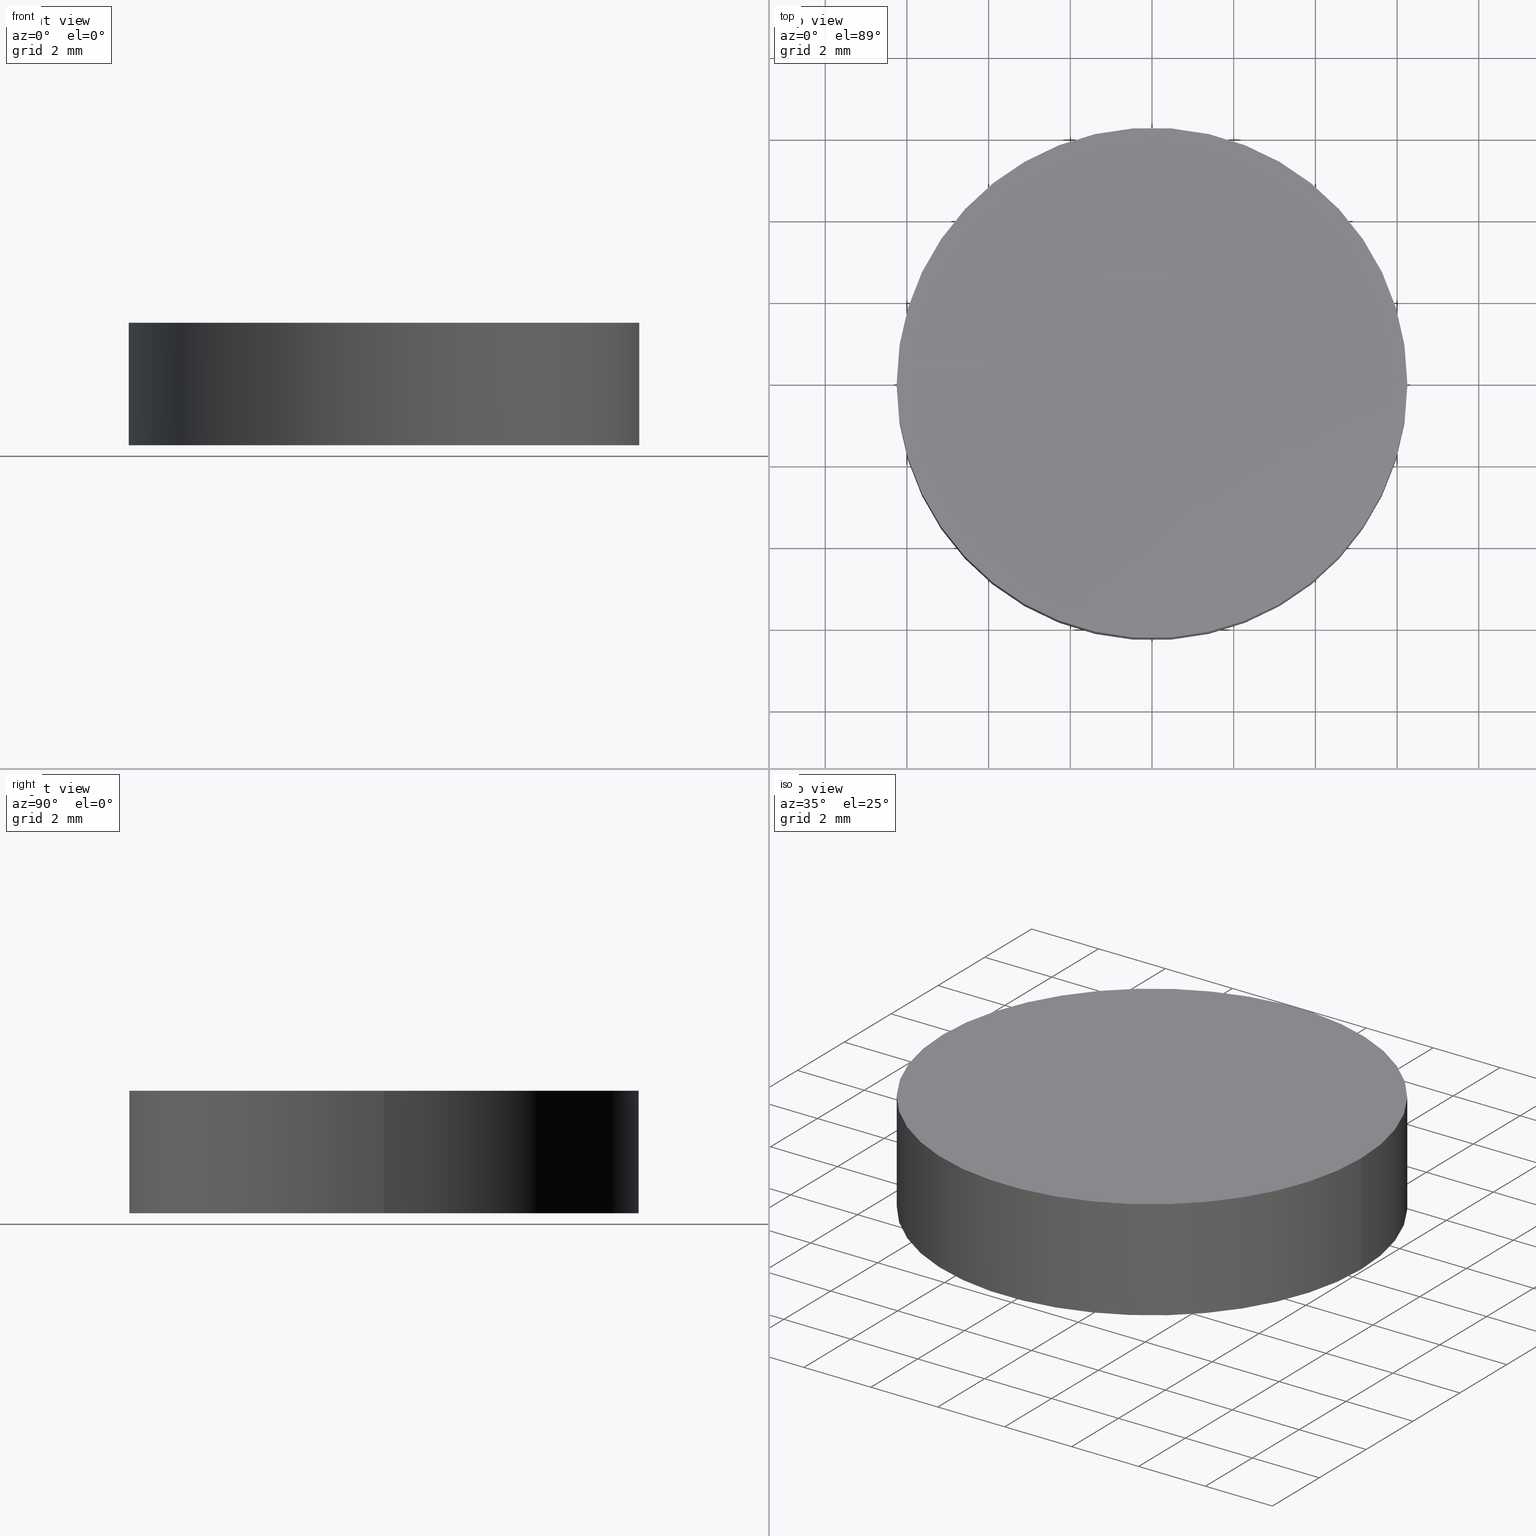
[diagram: canonical four-view strip — front | top / right | iso, engineering-drawing reading convention]
A machine part, canonical four-view strip (front | top / right | iso — engineering-drawing reading convention). The complete STEP part file that produces these views, byte-faithful:
ISO-10303-21;
HEADER;
FILE_DESCRIPTION (( 'STEP AP203' ),
    '1' );
FILE_NAME ('340500.STEP',
    '2019-07-30T06:41:51',
    ( '' ),
    ( '' ),
    'SwSTEP 2.0',
    'SolidWorks 2016',
    '' );
FILE_SCHEMA (( 'CONFIG_CONTROL_DESIGN' ));
ENDSEC;

DATA;
#1 = LOCAL_TIME ( 14, 41, 51.00000000000000000, #190 ) ;
#2 = CC_DESIGN_SECURITY_CLASSIFICATION ( #232, ( #123 ) ) ;
#3 = EDGE_CURVE ( 'NONE', #142, #80, #97, .T. ) ;
#4 = APPROVAL_PERSON_ORGANIZATION ( #38, #40, #88 ) ;
#5 = LOCAL_TIME ( 14, 41, 51.00000000000000000, #79 ) ;
#6 = PERSON_AND_ORGANIZATION ( #132, #160 ) ;
#7 = CALENDAR_DATE ( 2019, 30, 7 ) ;
#8 = DIRECTION ( 'NONE',  ( 1.000000000000000000, 0.0000000000000000000, 0.0000000000000000000 ) ) ;
#9 = AXIS2_PLACEMENT_3D ( 'NONE', #186, #203, #224 ) ;
#10 = ADVANCED_BREP_SHAPE_REPRESENTATION ( '340500', ( #91, #21 ), #251 ) ;
#11 = CARTESIAN_POINT ( 'NONE',  ( 6.249999999999998200, 7.654042494670955600E-016, 3.000000000000000000 ) ) ;
#12 = CARTESIAN_POINT ( 'NONE',  ( 0.0000000000000000000, 0.0000000000000000000, 0.0000000000000000000 ) ) ;
#13 = LOCAL_TIME ( 14, 41, 51.00000000000000000, #86 ) ;
#14 = CIRCLE ( 'NONE', #198, 6.249999999999998200 ) ;
#15 = PRODUCT_RELATED_PRODUCT_CATEGORY ( 'detail', '', ( #206 ) ) ;
#16 = APPROVAL_ROLE ( '' ) ;
#17 = APPROVAL_STATUS ( 'not_yet_approved' ) ;
#18 = VERTEX_POINT ( 'NONE', #68 ) ;
#19 = DIRECTION ( 'NONE',  ( 1.000000000000000000, 0.0000000000000000000, 0.0000000000000000000 ) ) ;
#20 = APPLICATION_CONTEXT ( 'configuration controlled 3d designs of mechanical parts and assemblies' ) ;
#21 = AXIS2_PLACEMENT_3D ( 'NONE', #12, #104, #19 ) ;
#22 = APPROVAL_PERSON_ORGANIZATION ( #65, #89, #172 ) ;
#23 = PERSON_AND_ORGANIZATION ( #132, #160 ) ;
#24 = COORDINATED_UNIVERSAL_TIME_OFFSET ( 8, 0, .AHEAD. ) ;
#25 = ORIENTED_EDGE ( 'NONE', *, *, #83, .F. ) ;
#26 = AXIS2_PLACEMENT_3D ( 'NONE', #166, #144, #82 ) ;
#27 = DIRECTION ( 'NONE',  ( 0.0000000000000000000, 0.0000000000000000000, 1.000000000000000000 ) ) ;
#28 = CARTESIAN_POINT ( 'NONE',  ( 0.0000000000000000000, 0.0000000000000000000, 0.0000000000000000000 ) ) ;
#29 = CALENDAR_DATE ( 2019, 30, 7 ) ;
#30 = FACE_OUTER_BOUND ( 'NONE', #215, .T. ) ;
#31 = APPROVAL_ROLE ( '' ) ;
#32 = CLOSED_SHELL ( 'NONE', ( #177, #51, #145, #34 ) ) ;
#33 = PERSON_AND_ORGANIZATION_ROLE ( 'design_supplier' ) ;
#34 = ADVANCED_FACE ( 'NONE', ( #139 ), #244, .F. ) ;
#35 = SECURITY_CLASSIFICATION_LEVEL ( 'unclassified' ) ;
#36 = PERSON_AND_ORGANIZATION ( #132, #160 ) ;
#37 = ORIENTED_EDGE ( 'NONE', *, *, #3, .F. ) ;
#38 = PERSON_AND_ORGANIZATION ( #132, #160 ) ;
#39 = PERSON_AND_ORGANIZATION ( #132, #160 ) ;
#40 = APPROVAL ( #249, 'δָ��' ) ;
#41 = PERSON_AND_ORGANIZATION ( #132, #160 ) ;
#42 = DIRECTION ( 'NONE',  ( -1.000000000000000000, 0.0000000000000000000, 0.0000000000000000000 ) ) ;
#43 = APPROVAL_DATE_TIME ( #210, #111 ) ;
#44 = CC_DESIGN_PERSON_AND_ORGANIZATION_ASSIGNMENT ( #23, #188, ( #206 ) ) ;
#45 = DIRECTION ( 'NONE',  ( 0.0000000000000000000, 0.0000000000000000000, 1.000000000000000000 ) ) ;
#46 = APPROVAL_DATE_TIME ( #199, #158 ) ;
#47 = ORIENTED_EDGE ( 'NONE', *, *, #59, .T. ) ;
#48 = DATE_TIME_ROLE ( 'classification_date' ) ;
#49 = APPROVAL_STATUS ( 'not_yet_approved' ) ;
#50 = EDGE_CURVE ( 'NONE', #80, #197, #61, .T. ) ;
#51 = ADVANCED_FACE ( 'NONE', ( #121 ), #234, .T. ) ;
#52 = LOCAL_TIME ( 14, 41, 51.00000000000000000, #84 ) ;
#53 = DATE_TIME_ROLE ( 'creation_date' ) ;
#54 = PERSON_AND_ORGANIZATION_ROLE ( 'creator' ) ;
#55 = CC_DESIGN_PERSON_AND_ORGANIZATION_ASSIGNMENT ( #184, #228, ( #135 ) ) ;
#56 = DATE_AND_TIME ( #96, #1 ) ;
#57 = CIRCLE ( 'NONE', #67, 6.249999999999998200 ) ;
#58 = PERSON_AND_ORGANIZATION ( #132, #160 ) ;
#59 = EDGE_CURVE ( 'NONE', #18, #197, #77, .T. ) ;
#60 = CALENDAR_DATE ( 2019, 30, 7 ) ;
#61 = CIRCLE ( 'NONE', #241, 6.249999999999998200 ) ;
#62 = DESIGN_CONTEXT ( 'detailed design', #153, 'design' ) ;
#63 = CC_DESIGN_APPROVAL ( #75, ( #202 ) ) ;
#64 = DIRECTION ( 'NONE',  ( 0.0000000000000000000, 0.0000000000000000000, 1.000000000000000000 ) ) ;
#65 = PERSON_AND_ORGANIZATION ( #132, #160 ) ;
#66 = SHAPE_DEFINITION_REPRESENTATION ( #222, #10 ) ;
#67 = AXIS2_PLACEMENT_3D ( 'NONE', #122, #64, #8 ) ;
#68 = CARTESIAN_POINT ( 'NONE',  ( 6.249999999999998200, 7.654042494670955600E-016, 3.000000000000000000 ) ) ;
#69 = PRODUCT_DEFINITION ( 'δ֪', '', #123, #62 ) ;
#70 = CARTESIAN_POINT ( 'NONE',  ( -6.249999999999998200, 0.0000000000000000000, 3.000000000000000000 ) ) ;
#71 =( NAMED_UNIT ( * ) PLANE_ANGLE_UNIT ( ) SI_UNIT ( $, .RADIAN. ) );
#72 = SECURITY_CLASSIFICATION_LEVEL ( 'unclassified' ) ;
#73 = CC_DESIGN_PERSON_AND_ORGANIZATION_ASSIGNMENT ( #223, #54, ( #69 ) ) ;
#74 = PERSON_AND_ORGANIZATION_ROLE ( 'creator' ) ;
#75 = APPROVAL ( #17, 'δָ��' ) ;
#76 = DATE_AND_TIME ( #126, #180 ) ;
#77 = LINE ( 'NONE', #11, #191 ) ;
#78 = PRODUCT_RELATED_PRODUCT_CATEGORY ( 'detail', '', ( #227 ) ) ;
#79 = COORDINATED_UNIVERSAL_TIME_OFFSET ( 8, 0, .AHEAD. ) ;
#80 = VERTEX_POINT ( 'NONE', #170 ) ;
#81 = CC_DESIGN_PERSON_AND_ORGANIZATION_ASSIGNMENT ( #6, #129, ( #227 ) ) ;
#82 = DIRECTION ( 'NONE',  ( 1.000000000000000000, 0.0000000000000000000, -0.0000000000000000000 ) ) ;
#83 = EDGE_CURVE ( 'NONE', #197, #80, #248, .T. ) ;
#84 = COORDINATED_UNIVERSAL_TIME_OFFSET ( 8, 0, .AHEAD. ) ;
#85 = CARTESIAN_POINT ( 'NONE',  ( -6.249999999999998200, 0.0000000000000000000, 3.000000000000000000 ) ) ;
#86 = COORDINATED_UNIVERSAL_TIME_OFFSET ( 8, 0, .AHEAD. ) ;
#87 = FACE_OUTER_BOUND ( 'NONE', #181, .T. ) ;
#88 = APPROVAL_ROLE ( '' ) ;
#89 = APPROVAL ( #192, 'δָ��' ) ;
#90 = DATE_TIME_ROLE ( 'classification_date' ) ;
#91 = MANIFOLD_SOLID_BREP ( '͹̨-����1', #32 ) ;
#92 = APPROVAL_DATE_TIME ( #159, #89 ) ;
#93 = APPLICATION_PROTOCOL_DEFINITION ( 'international standard', 'config_control_design', 1994, #152 ) ;
#94 = CALENDAR_DATE ( 2019, 30, 7 ) ;
#95 = CC_DESIGN_DATE_AND_TIME_ASSIGNMENT ( #103, #48, ( #135 ) ) ;
#96 = CALENDAR_DATE ( 2019, 30, 7 ) ;
#97 = LINE ( 'NONE', #85, #194 ) ;
#98 = DATE_AND_TIME ( #195, #218 ) ;
#99 = CC_DESIGN_PERSON_AND_ORGANIZATION_ASSIGNMENT ( #39, #208, ( #202 ) ) ;
#100 = DATE_AND_TIME ( #141, #237 ) ;
#101 = PERSON_AND_ORGANIZATION ( #132, #160 ) ;
#102 = EDGE_CURVE ( 'NONE', #142, #18, #57, .T. ) ;
#103 = DATE_AND_TIME ( #138, #214 ) ;
#104 = DIRECTION ( 'NONE',  ( 0.0000000000000000000, 0.0000000000000000000, 1.000000000000000000 ) ) ;
#105 = APPROVAL_PERSON_ORGANIZATION ( #110, #111, #16 ) ;
#106 = CARTESIAN_POINT ( 'NONE',  ( 0.0000000000000000000, 0.0000000000000000000, 0.0000000000000000000 ) ) ;
#107 = CYLINDRICAL_SURFACE ( 'NONE', #9, 6.249999999999998200 ) ;
#108 = DIRECTION ( 'NONE',  ( 0.0000000000000000000, 0.0000000000000000000, 1.000000000000000000 ) ) ;
#109 = APPROVAL_STATUS ( 'not_yet_approved' ) ;
#110 = PERSON_AND_ORGANIZATION ( #132, #160 ) ;
#111 = APPROVAL ( #157, 'δָ��' ) ;
#112 = PRODUCT_DEFINITION_FORMATION_WITH_SPECIFIED_SOURCE ( '�κ�', '', #206, .NOT_KNOWN. ) ;
#113 = LOCAL_TIME ( 14, 41, 51.00000000000000000, #167 ) ;
#114 = EDGE_LOOP ( 'NONE', ( #240, #169, #243, #134 ) ) ;
#115 = PRODUCT_DEFINITION_SHAPE ( 'NONE', 'NONE',  #202 ) ;
#116 = CC_DESIGN_PERSON_AND_ORGANIZATION_ASSIGNMENT ( #233, #74, ( #123 ) ) ;
#117 = ORIENTED_EDGE ( 'NONE', *, *, #211, .F. ) ;
#118 = CC_DESIGN_DATE_AND_TIME_ASSIGNMENT ( #100, #155, ( #202 ) ) ;
#119 = APPROVAL_DATE_TIME ( #149, #173 ) ;
#120 = CC_DESIGN_APPROVAL ( #111, ( #69 ) ) ;
#121 = FACE_OUTER_BOUND ( 'NONE', #114, .T. ) ;
#122 = CARTESIAN_POINT ( 'NONE',  ( 0.0000000000000000000, 0.0000000000000000000, 3.000000000000000000 ) ) ;
#123 = PRODUCT_DEFINITION_FORMATION_WITH_SPECIFIED_SOURCE ( '�κ�', '', #227, .NOT_KNOWN. ) ;
#124 = CC_DESIGN_PERSON_AND_ORGANIZATION_ASSIGNMENT ( #161, #207, ( #112 ) ) ;
#125 = DIRECTION ( 'NONE',  ( 1.000000000000000000, 0.0000000000000000000, 0.0000000000000000000 ) ) ;
#126 = CALENDAR_DATE ( 2019, 30, 7 ) ;
#127 = DIRECTION ( 'NONE',  ( -0.0000000000000000000, -0.0000000000000000000, -1.000000000000000000 ) ) ;
#128 = DIRECTION ( 'NONE',  ( 1.000000000000000000, 0.0000000000000000000, 0.0000000000000000000 ) ) ;
#129 = PERSON_AND_ORGANIZATION_ROLE ( 'design_owner' ) ;
#130 = MECHANICAL_CONTEXT ( 'NONE', #189, 'mechanical' ) ;
#131 = AXIS2_PLACEMENT_3D ( 'NONE', #168, #182, #42 ) ;
#132 = PERSON ( 'δָ��', 'δָ��', 'δָ��', ('δָ��'), ('δָ��'), ('δָ��') ) ;
#133 = APPROVAL_PERSON_ORGANIZATION ( #36, #173, #154 ) ;
#134 = ORIENTED_EDGE ( 'NONE', *, *, #50, .T. ) ;
#135 = SECURITY_CLASSIFICATION ( '', '', #72 ) ;
#136 = CC_DESIGN_DATE_AND_TIME_ASSIGNMENT ( #56, #53, ( #69 ) ) ;
#137 = CC_DESIGN_APPROVAL ( #89, ( #232 ) ) ;
#138 = CALENDAR_DATE ( 2019, 30, 7 ) ;
#139 = FACE_OUTER_BOUND ( 'NONE', #238, .T. ) ;
#140 = CC_DESIGN_PERSON_AND_ORGANIZATION_ASSIGNMENT ( #58, #171, ( #112 ) ) ;
#141 = CALENDAR_DATE ( 2019, 30, 7 ) ;
#142 = VERTEX_POINT ( 'NONE', #70 ) ;
#143 = CC_DESIGN_APPROVAL ( #40, ( #112 ) ) ;
#144 = DIRECTION ( 'NONE',  ( 0.0000000000000000000, 0.0000000000000000000, 1.000000000000000000 ) ) ;
#145 = ADVANCED_FACE ( 'NONE', ( #87 ), #204, .T. ) ;
#146 = COORDINATED_UNIVERSAL_TIME_OFFSET ( 8, 0, .AHEAD. ) ;
#147 = CARTESIAN_POINT ( 'NONE',  ( 0.0000000000000000000, 0.0000000000000000000, 0.0000000000000000000 ) ) ;
#148 = DIRECTION ( 'NONE',  ( 0.0000000000000000000, 0.0000000000000000000, 1.000000000000000000 ) ) ;
#149 = DATE_AND_TIME ( #29, #5 ) ;
#150 = ORIENTED_EDGE ( 'NONE', *, *, #102, .T. ) ;
#151 = CC_DESIGN_PERSON_AND_ORGANIZATION_ASSIGNMENT ( #221, #33, ( #123 ) ) ;
#152 = APPLICATION_CONTEXT ( 'configuration controlled 3d designs of mechanical parts and assemblies' ) ;
#153 = APPLICATION_CONTEXT ( 'configuration controlled 3d designs of mechanical parts and assemblies' ) ;
#154 = APPROVAL_ROLE ( '' ) ;
#155 = DATE_TIME_ROLE ( 'creation_date' ) ;
#156 = APPROVAL_DATE_TIME ( #242, #75 ) ;
#157 = APPROVAL_STATUS ( 'not_yet_approved' ) ;
#158 = APPROVAL ( #109, 'δָ��' ) ;
#159 = DATE_AND_TIME ( #60, #113 ) ;
#160 = ORGANIZATION ( 'δָ��', 'δָ��', '' ) ;
#161 = PERSON_AND_ORGANIZATION ( #132, #160 ) ;
#162 = APPROVAL_PERSON_ORGANIZATION ( #163, #158, #176 ) ;
#163 = PERSON_AND_ORGANIZATION ( #132, #160 ) ;
#164 = DIRECTION ( 'NONE',  ( 1.000000000000000000, 0.0000000000000000000, -0.0000000000000000000 ) ) ;
#165 = CC_DESIGN_SECURITY_CLASSIFICATION ( #135, ( #112 ) ) ;
#166 = CARTESIAN_POINT ( 'NONE',  ( 0.0000000000000000000, 0.0000000000000000000, 3.000000000000000000 ) ) ;
#167 = COORDINATED_UNIVERSAL_TIME_OFFSET ( 8, 0, .AHEAD. ) ;
#168 = CARTESIAN_POINT ( 'NONE',  ( 0.0000000000000000000, 0.0000000000000000000, 3.000000000000000000 ) ) ;
#169 = ORIENTED_EDGE ( 'NONE', *, *, #102, .F. ) ;
#170 = CARTESIAN_POINT ( 'NONE',  ( -6.249999999999998200, 0.0000000000000000000, 0.0000000000000000000 ) ) ;
#171 = PERSON_AND_ORGANIZATION_ROLE ( 'design_supplier' ) ;
#172 = APPROVAL_ROLE ( '' ) ;
#173 = APPROVAL ( #49, 'δָ��' ) ;
#174 = PERSON_AND_ORGANIZATION_ROLE ( 'classification_officer' ) ;
#175 = DIRECTION ( 'NONE',  ( 0.0000000000000000000, 0.0000000000000000000, 1.000000000000000000 ) ) ;
#176 = APPROVAL_ROLE ( '' ) ;
#177 = ADVANCED_FACE ( 'NONE', ( #30 ), #107, .T. ) ;
#178 = COORDINATED_UNIVERSAL_TIME_OFFSET ( 8, 0, .AHEAD. ) ;
#179 = ORIENTED_EDGE ( 'NONE', *, *, #50, .F. ) ;
#180 = LOCAL_TIME ( 14, 41, 51.00000000000000000, #246 ) ;
#181 = EDGE_LOOP ( 'NONE', ( #150, #225 ) ) ;
#182 = DIRECTION ( 'NONE',  ( -0.0000000000000000000, -0.0000000000000000000, -1.000000000000000000 ) ) ;
#183 = DIRECTION ( 'NONE',  ( -0.0000000000000000000, -0.0000000000000000000, -1.000000000000000000 ) ) ;
#184 = PERSON_AND_ORGANIZATION ( #132, #160 ) ;
#185 = ORIENTED_EDGE ( 'NONE', *, *, #83, .T. ) ;
#186 = CARTESIAN_POINT ( 'NONE',  ( 0.0000000000000000000, 0.0000000000000000000, 3.000000000000000000 ) ) ;
#187 = DIRECTION ( 'NONE',  ( 1.000000000000000000, 0.0000000000000000000, 0.0000000000000000000 ) ) ;
#188 = PERSON_AND_ORGANIZATION_ROLE ( 'design_owner' ) ;
#189 = APPLICATION_CONTEXT ( 'configuration controlled 3d designs of mechanical parts and assemblies' ) ;
#190 = COORDINATED_UNIVERSAL_TIME_OFFSET ( 8, 0, .AHEAD. ) ;
#191 = VECTOR ( 'NONE', #183, 1000.000000000000000 ) ;
#192 = APPROVAL_STATUS ( 'not_yet_approved' ) ;
#193 = CALENDAR_DATE ( 2019, 30, 7 ) ;
#194 = VECTOR ( 'NONE', #127, 1000.000000000000000 ) ;
#195 = CALENDAR_DATE ( 2019, 30, 7 ) ;
#196 = APPROVAL_DATE_TIME ( #98, #40 ) ;
#197 = VERTEX_POINT ( 'NONE', #226 ) ;
#198 = AXIS2_PLACEMENT_3D ( 'NONE', #231, #108, #128 ) ;
#199 = DATE_AND_TIME ( #94, #239 ) ;
#200 = CC_DESIGN_APPROVAL ( #158, ( #135 ) ) ;
#201 = CARTESIAN_POINT ( 'NONE',  ( 0.0000000000000000000, 0.0000000000000000000, 0.0000000000000000000 ) ) ;
#202 = PRODUCT_DEFINITION ( 'δ֪', '', #112, #229 ) ;
#203 = DIRECTION ( 'NONE',  ( -0.0000000000000000000, -0.0000000000000000000, -1.000000000000000000 ) ) ;
#204 = PLANE ( 'NONE',  #26 ) ;
#205 = APPROVAL_PERSON_ORGANIZATION ( #101, #75, #31 ) ;
#206 = PRODUCT ( '340500', '340500', '', ( #130 ) ) ;
#207 = PERSON_AND_ORGANIZATION_ROLE ( 'creator' ) ;
#208 = PERSON_AND_ORGANIZATION_ROLE ( 'creator' ) ;
#209 = APPLICATION_PROTOCOL_DEFINITION ( 'international standard', 'config_control_design', 1994, #189 ) ;
#210 = DATE_AND_TIME ( #7, #52 ) ;
#211 = EDGE_CURVE ( 'NONE', #18, #142, #14, .T. ) ;
#212 = APPLICATION_PROTOCOL_DEFINITION ( 'international standard', 'config_control_design', 1994, #20 ) ;
#213 = MECHANICAL_CONTEXT ( 'NONE', #20, 'mechanical' ) ;
#214 = LOCAL_TIME ( 14, 41, 51.00000000000000000, #146 ) ;
#215 = EDGE_LOOP ( 'NONE', ( #117, #47, #185, #37 ) ) ;
#216 = UNCERTAINTY_MEASURE_WITH_UNIT (LENGTH_MEASURE( 1.000000000000000100E-005 ), #247, 'distance_accuracy_value', 'NONE');
#217 = AXIS2_PLACEMENT_3D ( 'NONE', #106, #45, #187 ) ;
#218 = LOCAL_TIME ( 14, 41, 51.00000000000000000, #252 ) ;
#219 = CC_DESIGN_APPROVAL ( #173, ( #123 ) ) ;
#220 = AXIS2_PLACEMENT_3D ( 'NONE', #147, #175, #253 ) ;
#221 = PERSON_AND_ORGANIZATION ( #132, #160 ) ;
#222 = PRODUCT_DEFINITION_SHAPE ( 'NONE', 'NONE',  #69 ) ;
#223 = PERSON_AND_ORGANIZATION ( #132, #160 ) ;
#224 = DIRECTION ( 'NONE',  ( -1.000000000000000000, 0.0000000000000000000, 0.0000000000000000000 ) ) ;
#225 = ORIENTED_EDGE ( 'NONE', *, *, #211, .T. ) ;
#226 = CARTESIAN_POINT ( 'NONE',  ( 6.249999999999998200, 7.654042494670955600E-016, 0.0000000000000000000 ) ) ;
#227 = PRODUCT ( '340500', '340500', '', ( #213 ) ) ;
#228 = PERSON_AND_ORGANIZATION_ROLE ( 'classification_officer' ) ;
#229 = DESIGN_CONTEXT ( 'detailed design', #152, 'design' ) ;
#230 = APPLICATION_PROTOCOL_DEFINITION ( 'international standard', 'config_control_design', 1994, #153 ) ;
#231 = CARTESIAN_POINT ( 'NONE',  ( 0.0000000000000000000, 0.0000000000000000000, 3.000000000000000000 ) ) ;
#232 = SECURITY_CLASSIFICATION ( '', '', #35 ) ;
#233 = PERSON_AND_ORGANIZATION ( #132, #160 ) ;
#234 = CYLINDRICAL_SURFACE ( 'NONE', #131, 6.249999999999998200 ) ;
#235 = CC_DESIGN_PERSON_AND_ORGANIZATION_ASSIGNMENT ( #41, #174, ( #232 ) ) ;
#236 = AXIS2_PLACEMENT_3D ( 'NONE', #201, #27, #164 ) ;
#237 = LOCAL_TIME ( 14, 41, 51.00000000000000000, #178 ) ;
#238 = EDGE_LOOP ( 'NONE', ( #179, #25 ) ) ;
#239 = LOCAL_TIME ( 14, 41, 51.00000000000000000, #24 ) ;
#240 = ORIENTED_EDGE ( 'NONE', *, *, #59, .F. ) ;
#241 = AXIS2_PLACEMENT_3D ( 'NONE', #28, #148, #125 ) ;
#242 = DATE_AND_TIME ( #193, #13 ) ;
#243 = ORIENTED_EDGE ( 'NONE', *, *, #3, .T. ) ;
#244 = PLANE ( 'NONE',  #236 ) ;
#245 = CC_DESIGN_DATE_AND_TIME_ASSIGNMENT ( #76, #90, ( #232 ) ) ;
#246 = COORDINATED_UNIVERSAL_TIME_OFFSET ( 8, 0, .AHEAD. ) ;
#247 =( LENGTH_UNIT ( ) NAMED_UNIT ( * ) SI_UNIT ( .MILLI., .METRE. ) );
#248 = CIRCLE ( 'NONE', #217, 6.249999999999998200 ) ;
#249 = APPROVAL_STATUS ( 'not_yet_approved' ) ;
#250 =( NAMED_UNIT ( * ) SI_UNIT ( $, .STERADIAN. ) SOLID_ANGLE_UNIT ( ) );
#251 =( GEOMETRIC_REPRESENTATION_CONTEXT ( 3 ) GLOBAL_UNCERTAINTY_ASSIGNED_CONTEXT ( ( #216 ) ) GLOBAL_UNIT_ASSIGNED_CONTEXT ( ( #247, #71, #250 ) ) REPRESENTATION_CONTEXT ( 'NONE', 'WORKASPACE' ) );
#252 = COORDINATED_UNIVERSAL_TIME_OFFSET ( 8, 0, .AHEAD. ) ;
#253 = DIRECTION ( 'NONE',  ( 1.000000000000000000, 0.0000000000000000000, 0.0000000000000000000 ) ) ;
ENDSEC;
END-ISO-10303-21;
